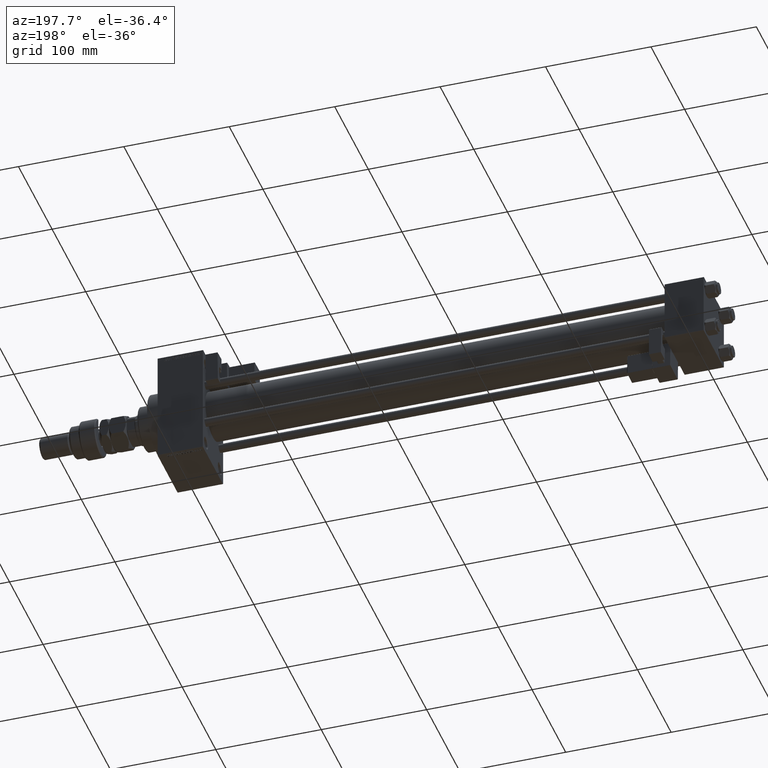
[diagram: clean part render]
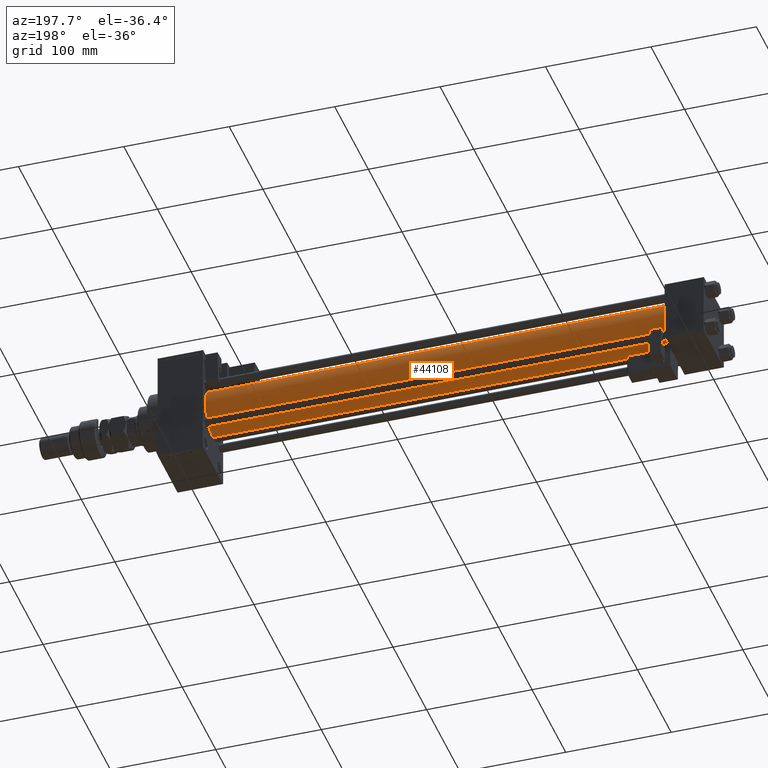
[diagram: same view with one face highlighted and labeled with its STEP entity id]
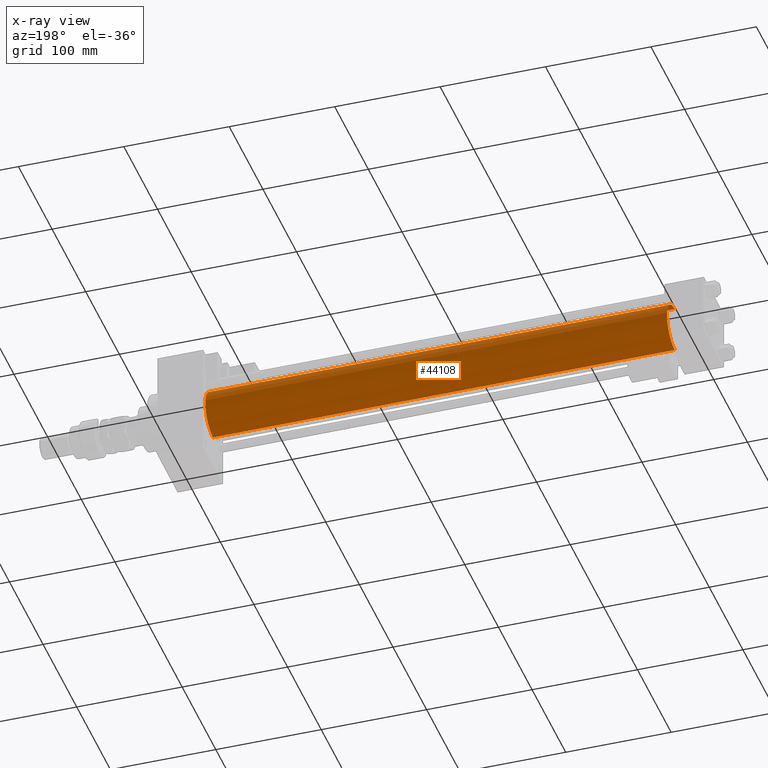
[diagram: x-ray of the same camera — body ghosted, the highlighted face saturated]
A machine part, auxiliary view. The second image highlights one B-rep face of the part: STEP entity #44108.
The next image is the same camera in x-ray: the body ghosted, the highlighted face saturated — about 0% of this face is hidden behind the body in this view.
In plain terms, the highlighted cylindrical surface (edge-blend (fillet) strip) has radius 23 mm, axis along (-1, -0, -0).
Its self-contained STEP definition (entity closure, byte-faithful):
#1068 = EDGE_CURVE ( 'NONE', #20844, #14753, #5031, .T. ) ;
#1561 = DIRECTION ( 'NONE',  ( 0.000000000000000000, 0.000000000000000000, 1.000000000000000000 ) ) ;
#1827 = CIRCLE ( 'NONE', #3541, 23.00000000000000000 ) ;
#2310 = CARTESIAN_POINT ( 'NONE',  ( 475.0000000000000000, -2.602085213965210642E-15, 23.00000000000000000 ) ) ;
#3541 = AXIS2_PLACEMENT_3D ( 'NONE', #41060, #24350, #40281 ) ;
#5031 = LINE ( 'NONE', #41158, #29988 ) ;
#5248 = EDGE_CURVE ( 'NONE', #14859, #13097, #42790, .T. ) ;
#6893 = EDGE_CURVE ( 'NONE', #13097, #14753, #50620, .T. ) ;
#7058 = CYLINDRICAL_SURFACE ( 'NONE', #9404, 23.00000000000000000 ) ;
#9404 = AXIS2_PLACEMENT_3D ( 'NONE', #15283, #10507, #30971 ) ;
#10507 = DIRECTION ( 'NONE',  ( -1.000000000000000000, -0.000000000000000000, -0.000000000000000000 ) ) ;
#11645 = EDGE_CURVE ( 'NONE', #14859, #20844, #1827, .T. ) ;
#12327 = VECTOR ( 'NONE', #39590, 1000.000000000000000 ) ;
#13097 = VERTEX_POINT ( 'NONE', #43615 ) ;
#13248 = CARTESIAN_POINT ( 'NONE',  ( 475.0000000000000000, 2.146024240737016609E-16, -23.00000000000000000 ) ) ;
#14753 = VERTEX_POINT ( 'NONE', #32143 ) ;
#14859 = VERTEX_POINT ( 'NONE', #13248 ) ;
#15283 = CARTESIAN_POINT ( 'NONE',  ( 475.0000000000000000, -2.602085213965210642E-15, 0.000000000000000000 ) ) ;
#20844 = VERTEX_POINT ( 'NONE', #2310 ) ;
#21735 = CARTESIAN_POINT ( 'NONE',  ( 36.99999999999997868, -2.602085213965210642E-15, 0.000000000000000000 ) ) ;
#24350 = DIRECTION ( 'NONE',  ( 1.000000000000000000, 0.000000000000000000, 0.000000000000000000 ) ) ;
#25974 = AXIS2_PLACEMENT_3D ( 'NONE', #21735, #37933, #1561 ) ;
#27207 = ORIENTED_EDGE ( 'NONE', *, *, #11645, .F. ) ;
#28154 = DIRECTION ( 'NONE',  ( -1.000000000000000000, -0.000000000000000000, -0.000000000000000000 ) ) ;
#29988 = VECTOR ( 'NONE', #28154, 1000.000000000000000 ) ;
#30971 = DIRECTION ( 'NONE',  ( 0.000000000000000000, 0.000000000000000000, 1.000000000000000000 ) ) ;
#31086 = ORIENTED_EDGE ( 'NONE', *, *, #5248, .T. ) ;
#31239 = FACE_OUTER_BOUND ( 'NONE', #40294, .T. ) ;
#32031 = ORIENTED_EDGE ( 'NONE', *, *, #6893, .T. ) ;
#32143 = CARTESIAN_POINT ( 'NONE',  ( 36.99999999999997868, -2.602085213965210642E-15, 23.00000000000000000 ) ) ;
#37933 = DIRECTION ( 'NONE',  ( 1.000000000000000000, -0.000000000000000000, 0.000000000000000000 ) ) ;
#39590 = DIRECTION ( 'NONE',  ( -1.000000000000000000, -0.000000000000000000, -0.000000000000000000 ) ) ;
#40122 = CARTESIAN_POINT ( 'NONE',  ( 475.0000000000000000, 2.146024240737016609E-16, -23.00000000000000000 ) ) ;
#40281 = DIRECTION ( 'NONE',  ( 0.000000000000000000, 0.000000000000000000, -1.000000000000000000 ) ) ;
#40294 = EDGE_LOOP ( 'NONE', ( #27207, #31086, #32031, #49229 ) ) ;
#41060 = CARTESIAN_POINT ( 'NONE',  ( 475.0000000000000000, -2.602085213965210642E-15, 0.000000000000000000 ) ) ;
#41158 = CARTESIAN_POINT ( 'NONE',  ( 475.0000000000000000, -2.602085213965210642E-15, 23.00000000000000000 ) ) ;
#42790 = LINE ( 'NONE', #40122, #12327 ) ;
#43615 = CARTESIAN_POINT ( 'NONE',  ( 36.99999999999997868, 2.146024240737016609E-16, -23.00000000000000000 ) ) ;
#44108 = ADVANCED_FACE ( 'NONE', ( #31239 ), #7058, .T. ) ;
#49229 = ORIENTED_EDGE ( 'NONE', *, *, #1068, .F. ) ;
#50620 = CIRCLE ( 'NONE', #25974, 23.00000000000000000 ) ;